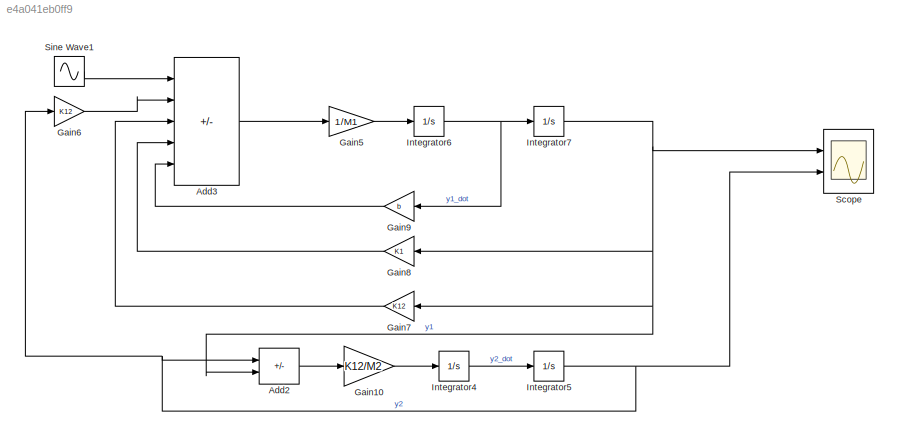
MODEL slx_e4a041eb0ff9
KIND model
CONFIG AbsTol = auto
CONFIG EnableMultiTasking = off
CONFIG FixedStep = auto
CONFIG MaxStep = auto
CONFIG MinStep = auto
CONFIG RelTol = 1e-3
CONFIG SampleTimeConstraint = Unconstrained
CONFIG SolverName = VariableStepAuto
CONFIG StartTime = 0.0
CONFIG StopTime = 50
WORKSPACE source: mxarray member
WORKSPACE K1 = 50
WORKSPACE K12 = 200
WORKSPACE M1 = 100
WORKSPACE M2 = 60
WORKSPACE b = 50
BLOCK [Sum] Add2
  IconShape = rectangular
  Inputs = -+
  Ports = [2, 1]
BLOCK [Sum] Add3
  IconShape = rectangular
  Inputs = ++---
  Ports = [5, 1]
BLOCK [Gain] Gain10
  Gain = K12/M2
BLOCK [Gain] Gain5
  Gain = 1/M1
BLOCK [Gain] Gain6
  Gain = K12
BLOCK [Gain] Gain7
  Gain = K12
BLOCK [Gain] Gain8
  Gain = K1
BLOCK [Gain] Gain9
  Gain = b
BLOCK [Integrator] Integrator4
  Ports = [1, 1]
BLOCK [Integrator] Integrator5
  Ports = [1, 1]
BLOCK [Integrator] Integrator6
  Ports = [1, 1]
BLOCK [Integrator] Integrator7
  Ports = [1, 1]
BLOCK [Scope] Scope
  Floating = off
  NumInputPorts = 2
  Ports = [2]
  ScopeSpecificationString = Simulink.scopes.TimeScopeBlockCfg('CurrentConfiguration', extmgr.ConfigurationSet(extmgr.Configuration('Core','General UI',true),extmgr.Configuration('Core','Source UI',true),extmgr.Configuration('Sources','WiredSimulink',true),extmgr.Configuration('Visuals','Time Domain',true,'SerializedDisplays',{struct('MinYLimReal','-0.00179','MaxYLimReal','0.00324','YLabelReal','','MinYLimMag','0.00000','MaxY...<+2013ch>
BLOCK [Sin] Sine Wave1
  Amplitude = 3
  Frequency = 10
  Ports = [0, 1]
  SampleTime = 0
LINE Add2:1 -> Gain10:1
LINE Add3:1 -> Gain5:1
LINE Gain10:1 -> Integrator4:1
LINE Gain5:1 -> Integrator6:1
LINE Gain6:1 -> Add3:2
LINE Gain7:1 -> Add3:3
LINE Gain8:1 -> Add3:4
LINE Gain9:1 -> Add3:5
LINE Integrator4:1 -> Integrator5:1
NET Integrator5:1 -> Add2:1, Gain6:1, Scope:2
NET Integrator6:1 -> Gain9:1, Integrator7:1
NET Integrator7:1 -> Add2:2, Gain7:1, Gain8:1, Scope:1
LINE Sine Wave1:1 -> Add3:1
note: NET lines group one-source signal fan-out (src -> all destinations, sorted); 1:1 wires keep LINE
